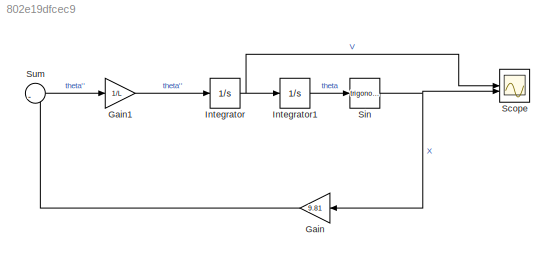
MODEL slx_802e19dfcec9
KIND model
CONFIG AbsTol = auto
CONFIG EnableMultiTasking = off
CONFIG FixedStep = auto
CONFIG MaxStep = 0.01
CONFIG MinStep = auto
CONFIG RelTol = 1e-3
CONFIG SampleTimeConstraint = Unconstrained
CONFIG SolverName = VariableStepAuto
CONFIG StartTime = 0.0
CONFIG StopTime = 10
BLOCK [Gain] Gain
  Gain = 9.81
  NameLocation = top
BLOCK [Gain] Gain1
  Gain = 1/L
BLOCK [Integrator] Integrator
BLOCK [Integrator] Integrator1
  InitialCondition = 1
BLOCK [Scope] Scope
  Floating = off
  NumInputPorts = 2
  ScopeSpecificationString = Simulink.scopes.TimeScopeBlockCfg('CurrentConfiguration', extmgr.ConfigurationSet(extmgr.Configuration('Core','General UI',true),extmgr.Configuration('Core','Source UI',true),extmgr.Configuration('Sources','WiredSimulink',true),extmgr.Configuration('Visuals','Time Domain',true,'SerializedDisplays',{struct('MinYLimReal','-1.67884','MaxYLimReal','1.67883','YLabelReal','','MinYLimMag','0.00000','MaxY...<+1350ch>
BLOCK [Trigonometry] Sin
BLOCK [Sum] Sum
  Inputs = |-
LINE Gain1:1 -> Integrator:1
LINE Gain:1 -> Sum:1
LINE Integrator1:1 -> Sin:1
NET Integrator:1 -> Integrator1:1, Scope:1
NET Sin:1 -> Gain:1, Scope:2
LINE Sum:1 -> Gain1:1
note: NET lines group one-source signal fan-out (src -> all destinations, sorted); 1:1 wires keep LINE
